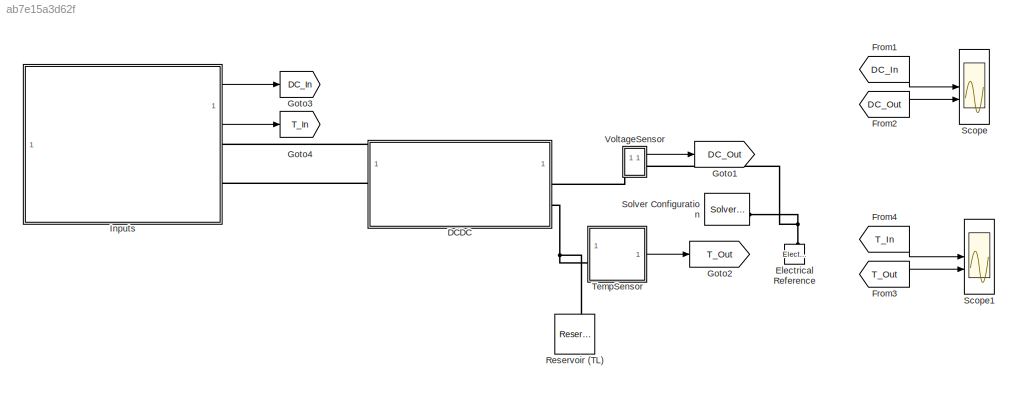
MODEL slx_ab7e15a3d62f
KIND model
CONFIG AbsTol = auto
CONFIG EnableMultiTasking = off
CONFIG FixedStep = auto
CONFIG MaxStep = auto
CONFIG MinStep = auto
CONFIG PreLoadFcn = PumpDriverTestHarnessParams;
CONFIG RelTol = 1e-3
CONFIG SampleTimeConstraint = Unconstrained
CONFIG SolverName = VariableStepAuto
CONFIG StartTime = 0.0
CONFIG StopTime = 1200
BLOCK [SubSystem] DCDC
  ReferencedSubsystem = PumpDriverTh
  VariantControl = Driveline == 1
BLOCK [Reference] Electrical Reference  REF=fl_lib/Electrical/Electrical Elements/Electrical Reference
  NameLocation = right
  SourceBlock = fl_lib/Electrical/Electrical Elements/Electrical Reference
  SourceType = Electrical Reference
BLOCK [From] From1
  GotoTag = DC_In
BLOCK [From] From2
  GotoTag = DC_Out
BLOCK [From] From3
  GotoTag = T_Out
BLOCK [From] From4
  GotoTag = T_In
BLOCK [Goto] Goto1
  GotoTag = DC_Out
BLOCK [Goto] Goto2
  GotoTag = T_Out
BLOCK [Goto] Goto3
  GotoTag = DC_In
BLOCK [Goto] Goto4
  GotoTag = T_In
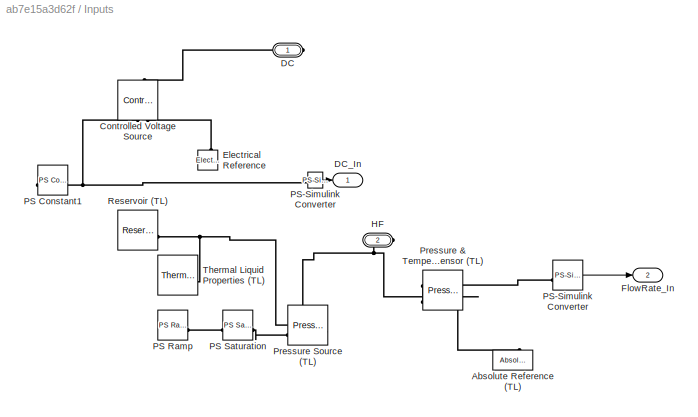
BLOCK [SubSystem] Inputs
BLOCK [Reference] Inputs/Absolute Reference (TL)  REF=fl_lib/Thermal Liquid/Elements/Absolute Reference
(TL)
  NameLocation = right
  SourceBlock = fl_lib/Thermal Liquid/Elements/Absolute Reference\n(TL)
  SourceType = Absolute Reference\n(TL)
BLOCK [Reference] Inputs/Controlled Voltage Source  REF=fl_lib/Electrical/Electrical Sources/Controlled Voltage
Source
  NameLocation = right
  SourceBlock = fl_lib/Electrical/Electrical Sources/Controlled Voltage\nSource
  SourceType = Controlled Voltage\nSource
BLOCK [PMIOPort] Inputs/DC
  Side = Right
BLOCK [Outport] Inputs/DC_In
BLOCK [Reference] Inputs/Electrical Reference  REF=fl_lib/Electrical/Electrical Elements/Electrical Reference
  NameLocation = right
  SourceBlock = fl_lib/Electrical/Electrical Elements/Electrical Reference
  SourceType = Electrical Reference
BLOCK [Outport] Inputs/FlowRate_In
  Port = 2
BLOCK [PMIOPort] Inputs/HF
  Port = 2
  Side = Right
BLOCK [Reference] Inputs/PS Constant1  REF=fl_lib/Physical Signals/Sources/PS Constant
  NameLocation = top
  SourceBlock = fl_lib/Physical Signals/Sources/PS Constant
  SourceType = PS Constant
BLOCK [Reference] Inputs/PS Ramp  REF=fl_lib/Physical Signals/Sources/PS Ramp
  SourceBlock = fl_lib/Physical Signals/Sources/PS Ramp
  SourceType = PS Ramp
BLOCK [Reference] Inputs/PS Saturation  REF=fl_lib/Physical Signals/Nonlinear Operators/PS Saturation
  SourceBlock = fl_lib/Physical Signals/Nonlinear Operators/PS Saturation
  SourceType = PS Saturation
BLOCK [Reference] Inputs/PS-Simulink Converter  REF=nesl_utility/PS-Simulink
Converter
  SourceBlock = nesl_utility/PS-Simulink\nConverter
  SourceType = PS-Simulink\nConverter
BLOCK [Reference] Inputs/Pressure & Temperature Sensor (TL)  REF=fl_lib/Thermal Liquid/Sensors/Pressure &
Temperature Sensor
(TL)
  SourceBlock = fl_lib/Thermal Liquid/Sensors/Pressure &\nTemperature Sensor\n(TL)
  SourceType = Pressure &\nTemperature Sensor\n(TL)
BLOCK [Reference] Inputs/Pressure Source (TL)  REF=fl_lib/Thermal Liquid/Sources/Pressure Source (TL)
  SourceBlock = fl_lib/Thermal Liquid/Sources/Pressure Source (TL)
  SourceType = Pressure Source (TL)
BLOCK [Reference] Inputs/Reservoir (TL)  REF=fl_lib/Thermal Liquid/Elements/Reservoir (TL)
  SourceBlock = fl_lib/Thermal Liquid/Elements/Reservoir (TL)
  SourceType = Reservoir (TL)
BLOCK [Reference] Inputs/Thermal Liquid Properties (TL)  REF=SimscapeFluids_lib/Thermal Liquid/Utilities/Thermal Liquid
Properties (TL)
  SourceBlock = SimscapeFluids_lib/Thermal Liquid/Utilities/Thermal Liquid\nProperties (TL)
  SourceType = Thermal Liquid\nProperties (TL)
BLOCK [Reference] Reservoir (TL)  REF=fl_lib/Thermal Liquid/Elements/Reservoir (TL)
  NameLocation = right
  SourceBlock = fl_lib/Thermal Liquid/Elements/Reservoir (TL)
  SourceType = Reservoir (TL)
BLOCK [Scope] Scope
  Floating = off
  NumInputPorts = 2
  ScopeSpecificationString = Simulink.scopes.TimeScopeBlockCfg('CurrentConfiguration', extmgr.ConfigurationSet(extmgr.Configuration('Core','General UI',true),extmgr.Configuration('Core','Source UI',true),extmgr.Configuration('Sources','WiredSimulink',true),extmgr.Configuration('Visuals','Time Domain',true,'SerializedDisplays',{struct('MinYLimReal','-150.00000','MaxYLimReal','1350.00000','YLabelReal','','MinYLimMag',' 0.00000'...<+2234ch>
BLOCK [Scope] Scope1
  Floating = off
  NumInputPorts = 2
  ScopeSpecificationString = Simulink.scopes.TimeScopeBlockCfg('CurrentConfiguration', extmgr.ConfigurationSet(extmgr.Configuration('Core','General UI',true),extmgr.Configuration('Core','Source UI',true),extmgr.Configuration('Sources','WiredSimulink',true,'DataLoggingVariableName','ScopeData1'),extmgr.Configuration('Visuals','Time Domain',true,'SerializedDisplays',{struct('MinYLimReal','298.11645','MaxYLimReal','298.50196','Y...<+2272ch>
BLOCK [Reference] Solver Configuration  REF=nesl_utility/Solver
Configuration
  SourceBlock = nesl_utility/Solver\nConfiguration
  SourceType = Solver\nConfiguration
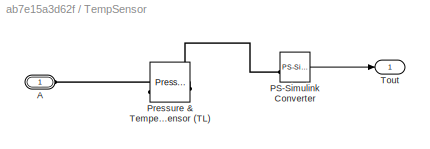
BLOCK [SubSystem] TempSensor
BLOCK [PMIOPort] TempSensor/A
  Side = Left
BLOCK [Reference] TempSensor/PS-Simulink Converter  REF=nesl_utility/PS-Simulink
Converter
  SourceBlock = nesl_utility/PS-Simulink\nConverter
  SourceType = PS-Simulink\nConverter
BLOCK [Reference] TempSensor/Pressure & Temperature Sensor (TL)  REF=fl_lib/Thermal Liquid/Sensors/Pressure &
Temperature Sensor
(TL)
  SourceBlock = fl_lib/Thermal Liquid/Sensors/Pressure &\nTemperature Sensor\n(TL)
  SourceType = Pressure &\nTemperature Sensor\n(TL)
BLOCK [Outport] TempSensor/Tout
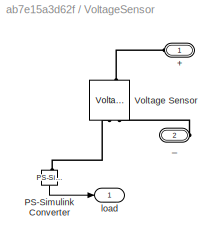
BLOCK [SubSystem] VoltageSensor
BLOCK [PMIOPort] VoltageSensor/+
  Side = Left
BLOCK [Reference] VoltageSensor/PS-Simulink Converter  REF=nesl_utility/PS-Simulink
Converter
  NameLocation = left
  SourceBlock = nesl_utility/PS-Simulink\nConverter
  SourceType = PS-Simulink\nConverter
BLOCK [Reference] VoltageSensor/Voltage Sensor  REF=fl_lib/Electrical/Electrical Sensors/Voltage Sensor
  NameLocation = right
  SourceBlock = fl_lib/Electrical/Electrical Sensors/Voltage Sensor
  SourceType = Voltage Sensor
BLOCK [PMIOPort] VoltageSensor/_
  Port = 2
  Side = Right
BLOCK [Outport] VoltageSensor/load
LINE From1:1 -> Scope:1
LINE From2:1 -> Scope:2
LINE From3:1 -> Scope1:2
LINE From4:1 -> Scope1:1
NET Inputs/PS-Simulink Converter:1 -> Inputs/DC_In:1, Inputs/FlowRate_In:1
LINE Inputs:1 -> Goto3:1
LINE Inputs:2 -> Goto4:1
LINE TempSensor/PS-Simulink Converter:1 -> TempSensor/Tout:1
LINE TempSensor:1 -> Goto2:1
LINE VoltageSensor/PS-Simulink Converter:1 -> VoltageSensor/load:1
LINE VoltageSensor:1 -> Goto1:1
PLINE DCDC:LConn1 -- Inputs:RConn1
PLINE DCDC:LConn2 -- Inputs:RConn2
PLINE DCDC:RConn1 -- VoltageSensor:LConn1
PNET net1: DCDC:RConn2 -- Reservoir (TL):LConn1 -- TempSensor:LConn1
PNET net2: Electrical Reference:LConn1 -- Solver Configuration:RConn1 -- VoltageSensor:RConn1
PLINE Inputs/Absolute Reference (TL):LConn1 -- Inputs/Pressure & Temperature Sensor (TL):RConn1
PLINE Inputs/Controlled Voltage Source:LConn1 -- Inputs/DC:RConn1
PNET net3: Inputs/Controlled Voltage Source:RConn1 -- Inputs/PS Constant1:RConn1 -- Inputs/PS-Simulink Converter:LConn1 -- Inputs/Pressure & Temperature Sensor (TL):RConn3
PLINE Inputs/Controlled Voltage Source:RConn2 -- Inputs/Electrical Reference:LConn1
PNET net4: Inputs/HF:RConn1 -- Inputs/Pressure & Temperature Sensor (TL):LConn1 -- Inputs/Pressure Source (TL):RConn1
PLINE Inputs/PS Ramp:RConn1 -- Inputs/PS Saturation:LConn1
PLINE Inputs/PS Saturation:RConn1 -- Inputs/Pressure Source (TL):LConn2
PNET net5: Inputs/Pressure Source (TL):LConn1 -- Inputs/Reservoir (TL):LConn1 -- Inputs/Thermal Liquid Properties (TL):RConn1
PLINE TempSensor/A:RConn1 -- TempSensor/Pressure & Temperature Sensor (TL):LConn1
PLINE TempSensor/PS-Simulink Converter:LConn1 -- TempSensor/Pressure & Temperature Sensor (TL):RConn2
PLINE VoltageSensor/+:RConn1 -- VoltageSensor/Voltage Sensor:LConn1
PLINE VoltageSensor/PS-Simulink Converter:LConn1 -- VoltageSensor/Voltage Sensor:RConn1
PLINE VoltageSensor/Voltage Sensor:RConn2 -- VoltageSensor/_:RConn1
note: NET lines group one-source signal fan-out (src -> all destinations, sorted); 1:1 wires keep LINE; PNET lines group multi-terminal physical nets as a canonical sorted terminal list (undirected conserving connections); 2-terminal nets keep the pairwise PLINE form
